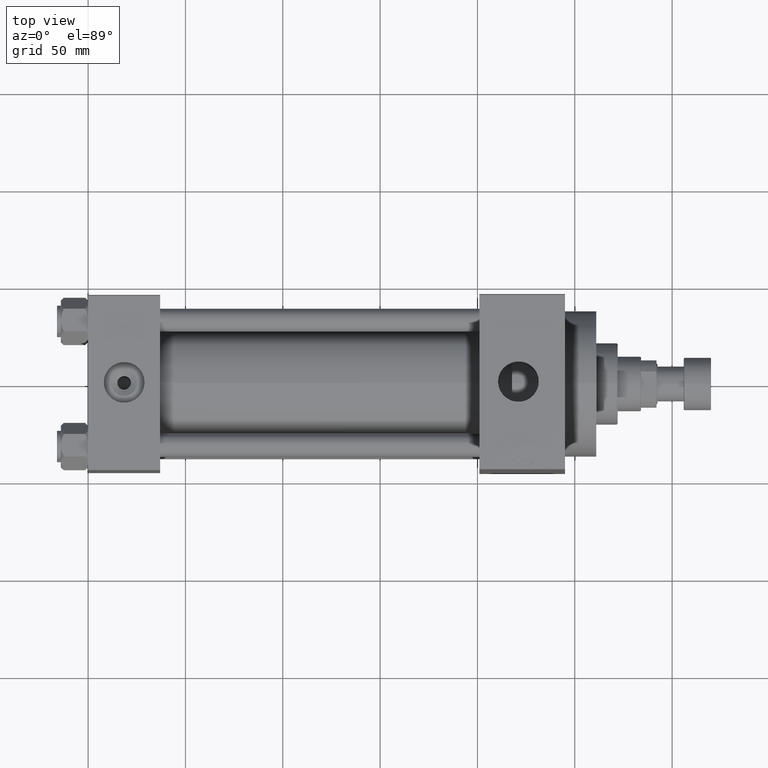
[diagram: clean part render]
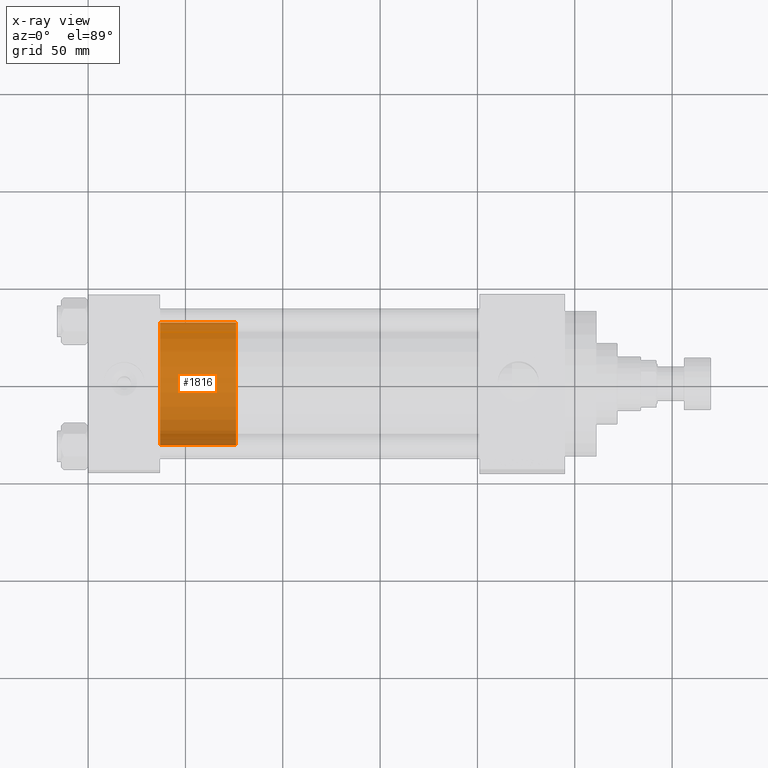
[diagram: x-ray — body ghosted, one internal face saturated and labeled with its STEP entity id]
A machine part, top view, then the same camera in x-ray: the body is ghosted and one INTERNAL B-rep face — a face not visible from any outside direction — is saturated and labeled: STEP entity #1816.
In plain terms, the highlighted cylindrical surface (partial cylindrical patch) has radius 31.5 mm, axis along (-1, 0, 0).
Its self-contained STEP definition (entity closure, byte-faithful):
#575 = ORIENTED_EDGE ( 'NONE', *, *, #40929, .T. ) ;
#769 = CYLINDRICAL_SURFACE ( 'NONE', #11466, 31.50000000000000000 ) ;
#1804 = DIRECTION ( 'NONE',  ( 1.000000000000000000, 0.000000000000000000, 0.000000000000000000 ) ) ;
#1816 = ADVANCED_FACE ( 'NONE', ( #15093 ), #769, .T. ) ;
#1978 = AXIS2_PLACEMENT_3D ( 'NONE', #5453, #20226, #1804 ) ;
#2385 = CARTESIAN_POINT ( 'NONE',  ( -31.50000000000000000, 0.000000000000000000, 39.00000000000000000 ) ) ;
#3251 = VERTEX_POINT ( 'NONE', #2385 ) ;
#4415 = CARTESIAN_POINT ( 'NONE',  ( 0.000000000000000000, 0.000000000000000000, 39.00000000000000000 ) ) ;
#5332 = DIRECTION ( 'NONE',  ( 0.000000000000000000, 0.000000000000000000, 1.000000000000000000 ) ) ;
#5453 = CARTESIAN_POINT ( 'NONE',  ( 0.000000000000000000, 0.000000000000000000, 0.000000000000000000 ) ) ;
#6296 = EDGE_LOOP ( 'NONE', ( #38067, #575, #26247, #26059 ) ) ;
#8529 = DIRECTION ( 'NONE',  ( -0.000000000000000000, -0.000000000000000000, -1.000000000000000000 ) ) ;
#8882 = CARTESIAN_POINT ( 'NONE',  ( 31.50000000000000000, 3.857637417314162689E-15, 0.000000000000000000 ) ) ;
#9207 = CARTESIAN_POINT ( 'NONE',  ( 0.000000000000000000, 0.000000000000000000, 39.00000000000000000 ) ) ;
#9229 = VERTEX_POINT ( 'NONE', #8882 ) ;
#11234 = LINE ( 'NONE', #14399, #27192 ) ;
#11466 = AXIS2_PLACEMENT_3D ( 'NONE', #4415, #8529, #33509 ) ;
#13739 = CARTESIAN_POINT ( 'NONE',  ( -31.50000000000000000, 0.000000000000000000, 0.000000000000000000 ) ) ;
#14399 = CARTESIAN_POINT ( 'NONE',  ( 31.50000000000000000, 3.857637417314162689E-15, 39.00000000000000000 ) ) ;
#15093 = FACE_OUTER_BOUND ( 'NONE', #6296, .T. ) ;
#20226 = DIRECTION ( 'NONE',  ( 0.000000000000000000, 0.000000000000000000, 1.000000000000000000 ) ) ;
#21752 = VECTOR ( 'NONE', #26478, 1000.000000000000000 ) ;
#22131 = DIRECTION ( 'NONE',  ( -0.000000000000000000, -0.000000000000000000, -1.000000000000000000 ) ) ;
#25503 = EDGE_CURVE ( 'NONE', #9229, #45028, #28319, .T. ) ;
#26059 = ORIENTED_EDGE ( 'NONE', *, *, #44194, .F. ) ;
#26247 = ORIENTED_EDGE ( 'NONE', *, *, #25503, .T. ) ;
#26478 = DIRECTION ( 'NONE',  ( -0.000000000000000000, -0.000000000000000000, -1.000000000000000000 ) ) ;
#26950 = LINE ( 'NONE', #41696, #21752 ) ;
#27192 = VECTOR ( 'NONE', #22131, 1000.000000000000000 ) ;
#28319 = CIRCLE ( 'NONE', #1978, 31.50000000000000000 ) ;
#29441 = AXIS2_PLACEMENT_3D ( 'NONE', #9207, #5332, #46705 ) ;
#33509 = DIRECTION ( 'NONE',  ( -1.000000000000000000, 0.000000000000000000, 0.000000000000000000 ) ) ;
#38067 = ORIENTED_EDGE ( 'NONE', *, *, #41336, .F. ) ;
#38213 = VERTEX_POINT ( 'NONE', #41195 ) ;
#40929 = EDGE_CURVE ( 'NONE', #38213, #9229, #11234, .T. ) ;
#41195 = CARTESIAN_POINT ( 'NONE',  ( 31.50000000000000000, 3.857637417314162689E-15, 39.00000000000000000 ) ) ;
#41336 = EDGE_CURVE ( 'NONE', #38213, #3251, #45625, .T. ) ;
#41696 = CARTESIAN_POINT ( 'NONE',  ( -31.50000000000000000, 0.000000000000000000, 39.00000000000000000 ) ) ;
#44194 = EDGE_CURVE ( 'NONE', #3251, #45028, #26950, .T. ) ;
#45028 = VERTEX_POINT ( 'NONE', #13739 ) ;
#45625 = CIRCLE ( 'NONE', #29441, 31.50000000000000000 ) ;
#46705 = DIRECTION ( 'NONE',  ( 1.000000000000000000, 0.000000000000000000, 0.000000000000000000 ) ) ;